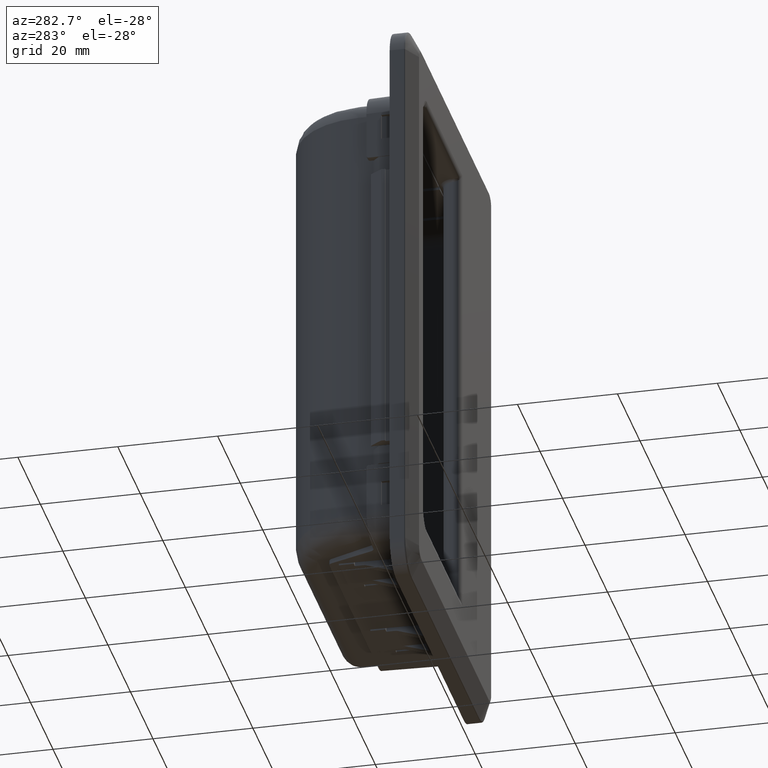
[diagram: clean part render]
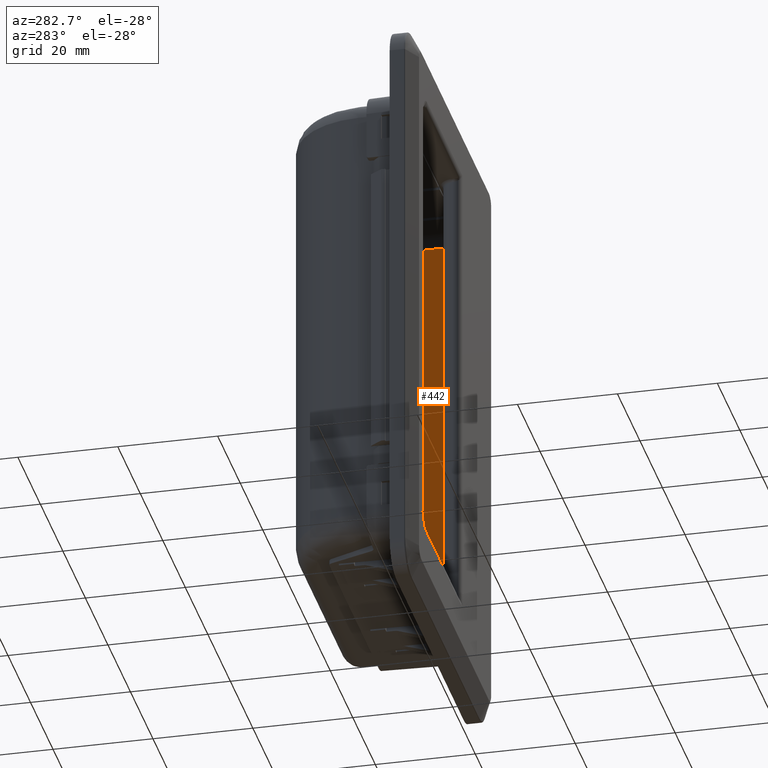
[diagram: same view with one face highlighted and labeled with its STEP entity id]
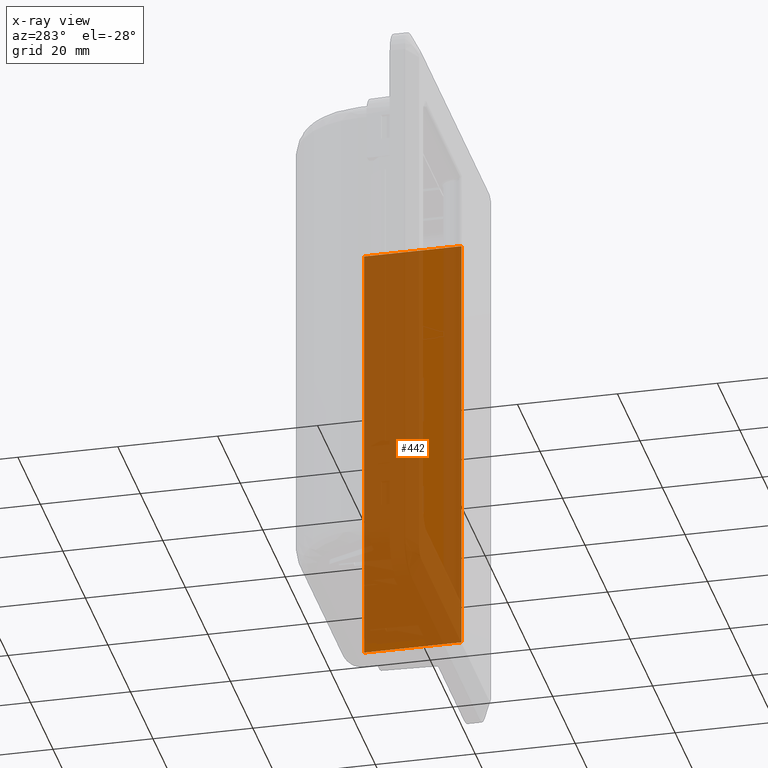
[diagram: x-ray of the same camera — body ghosted, the highlighted face saturated]
A machine part, auxiliary view. The second image highlights one B-rep face of the part: STEP entity #442.
The next image is the same camera in x-ray: the body ghosted, the highlighted face saturated — about 83% of this face is hidden behind the body in this view.
In plain terms, the highlighted planar face has unit normal (1, 0, 0).
Its self-contained STEP definition (entity closure, byte-faithful):
#442=ADVANCED_FACE('',(#5066),#5065,.F.);
#5065=PLANE('',#13007);
#5066=FACE_OUTER_BOUND('',#13008,.T.);
#13004=CARTESIAN_POINT('',(2.78000000004E+001,-1.95000000000E+000,5.25600000001E+001));
#13005=DIRECTION('',(1.00000000000E+000,0.00000000000E+000,0.00000000000E+000));
#13006=DIRECTION('',(0.00000000000E+000,0.00000000000E+000,-1.00000000000E+000));
#13007=AXIS2_PLACEMENT_3D('',#13004,#13005,#13006);
#13008=EDGE_LOOP('',(#21035,#21036,#21037,#21038));
#21035=ORIENTED_EDGE('',*,*,#25210,.F.);
#21036=ORIENTED_EDGE('',*,*,#25316,.F.);
#21037=ORIENTED_EDGE('',*,*,#25317,.T.);
#21038=ORIENTED_EDGE('',*,*,#25206,.F.);
#25206=EDGE_CURVE('',#36537,#36522,#36544,.T.);
#25210=EDGE_CURVE('',#36563,#36537,#36571,.T.);
#25316=EDGE_CURVE('',#37278,#36563,#37279,.T.);
#25317=EDGE_CURVE('',#37278,#36522,#37285,.T.);
#36522=VERTEX_POINT('',#48085);
#36537=VERTEX_POINT('',#48095);
#36544=LINE('',#48100,#48101);
#36563=VERTEX_POINT('',#48112);
#36571=LINE('',#48118,#48119);
#37278=VERTEX_POINT('',#48511);
#37279=LINE('',#48512,#48513);
#37285=LINE('',#48515,#48516);
#48085=CARTESIAN_POINT('',(2.78000000004E+001,0.00000000000E+000,4.38000000001E+001));
#48095=CARTESIAN_POINT('',(2.78000000004E+001,1.95000000000E+001,4.38000000001E+001));
#48100=CARTESIAN_POINT('',(2.78000000004E+001,1.95000000000E+001,4.38000000001E+001));
#48101=VECTOR('',#48102,1.95000000000E+001);
#48102=DIRECTION('',(0.00000000000E+000,-1.00000000000E+000,0.00000000000E+000));
#48112=CARTESIAN_POINT('',(2.78000000004E+001,1.95000000000E+001,-4.37999999999E+001));
#48118=CARTESIAN_POINT('',(2.78000000004E+001,1.95000000000E+001,-4.37999999999E+001));
#48119=VECTOR('',#48120,8.76000000000E+001);
#48120=DIRECTION('',(0.00000000000E+000,0.00000000000E+000,1.00000000000E+000));
#48511=CARTESIAN_POINT('',(2.78000000004E+001,0.00000000000E+000,-4.37999999999E+001));
#48512=CARTESIAN_POINT('',(2.78000000004E+001,0.00000000000E+000,-4.37999999999E+001));
#48513=VECTOR('',#48514,1.95000000000E+001);
#48514=DIRECTION('',(0.00000000000E+000,1.00000000000E+000,0.00000000000E+000));
#48515=CARTESIAN_POINT('',(2.78000000004E+001,0.00000000000E+000,-4.37999999999E+001));
#48516=VECTOR('',#48517,8.76000000000E+001);
#48517=DIRECTION('',(0.00000000000E+000,0.00000000000E+000,1.00000000000E+000));